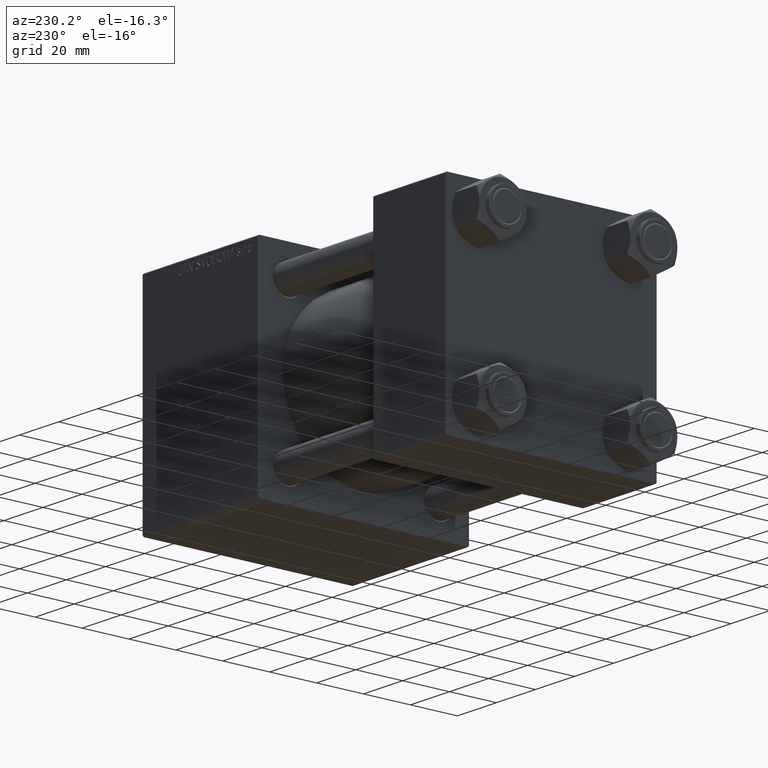
[diagram: clean part render]
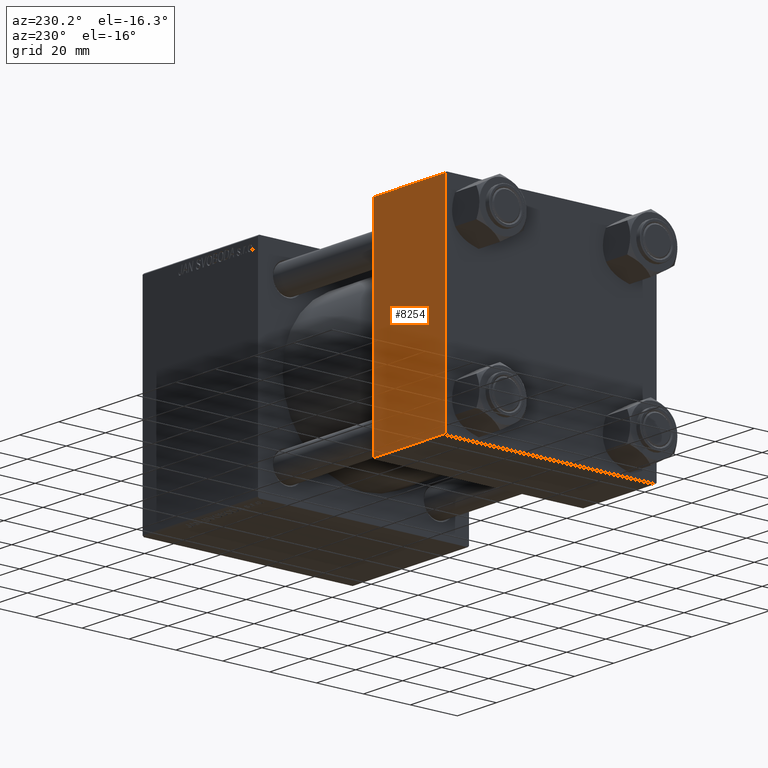
[diagram: same view with one face highlighted and labeled with its STEP entity id]
A machine part, auxiliary view. The second image highlights one B-rep face of the part: STEP entity #8254.
In plain terms, the highlighted planar face has unit normal (0, 1, 0).
Its self-contained STEP definition (entity closure, byte-faithful):
#5567 = CARTESIAN_POINT ( 'NONE',  ( 0.000000000000000000, 44.99999999999998579, 44.50000000000001421 ) ) ;
#6913 = DIRECTION ( 'NONE',  ( 0.000000000000000000, 0.000000000000000000, -1.000000000000000000 ) ) ;
#7414 = ORIENTED_EDGE ( 'NONE', *, *, #33044, .T. ) ;
#8254 = ADVANCED_FACE ( 'NONE', ( #32937 ), #36005, .T. ) ;
#9078 = VERTEX_POINT ( 'NONE', #49251 ) ;
#9746 = EDGE_CURVE ( 'NONE', #47585, #16267, #16538, .T. ) ;
#12712 = CARTESIAN_POINT ( 'NONE',  ( 0.000000000000000000, 44.99999999999998579, 45.00000000000001421 ) ) ;
#12918 = ORIENTED_EDGE ( 'NONE', *, *, #39011, .T. ) ;
#13025 = CARTESIAN_POINT ( 'NONE',  ( 37.00000000000000000, 44.99999999999998579, 44.50000000000001421 ) ) ;
#13546 = CARTESIAN_POINT ( 'NONE',  ( 37.00000000000000000, 44.99999999999998579, -44.49999999999998579 ) ) ;
#13594 = DIRECTION ( 'NONE',  ( 0.000000000000000000, -0.000000000000000000, 1.000000000000000000 ) ) ;
#14293 = LINE ( 'NONE', #13546, #37639 ) ;
#15089 = VECTOR ( 'NONE', #28252, 1000.000000000000000 ) ;
#15446 = AXIS2_PLACEMENT_3D ( 'NONE', #21502, #40069, #13594 ) ;
#16267 = VERTEX_POINT ( 'NONE', #32924 ) ;
#16406 = CARTESIAN_POINT ( 'NONE',  ( 37.00000000000000000, 44.99999999999998579, -44.49999999999995737 ) ) ;
#16510 = EDGE_LOOP ( 'NONE', ( #12918, #26457, #33289, #7414 ) ) ;
#16538 = LINE ( 'NONE', #12712, #15089 ) ;
#21502 = CARTESIAN_POINT ( 'NONE',  ( 37.00000000000000000, 44.99999999999998579, 45.00000000000001421 ) ) ;
#26457 = ORIENTED_EDGE ( 'NONE', *, *, #45440, .T. ) ;
#28252 = DIRECTION ( 'NONE',  ( 0.000000000000000000, 0.000000000000000000, -1.000000000000000000 ) ) ;
#32535 = VECTOR ( 'NONE', #6913, 1000.000000000000000 ) ;
#32924 = CARTESIAN_POINT ( 'NONE',  ( 0.000000000000000000, 44.99999999999998579, -44.49999999999995737 ) ) ;
#32937 = FACE_OUTER_BOUND ( 'NONE', #16510, .T. ) ;
#33044 = EDGE_CURVE ( 'NONE', #47585, #9078, #40263, .T. ) ;
#33289 = ORIENTED_EDGE ( 'NONE', *, *, #9746, .F. ) ;
#36005 = PLANE ( 'NONE',  #15446 ) ;
#36201 = DIRECTION ( 'NONE',  ( 1.000000000000000000, 0.000000000000000000, 0.000000000000000000 ) ) ;
#37639 = VECTOR ( 'NONE', #41285, 1000.000000000000000 ) ;
#39011 = EDGE_CURVE ( 'NONE', #9078, #43641, #45162, .T. ) ;
#40069 = DIRECTION ( 'NONE',  ( -0.000000000000000000, 1.000000000000000000, 0.000000000000000000 ) ) ;
#40263 = LINE ( 'NONE', #13025, #49020 ) ;
#41285 = DIRECTION ( 'NONE',  ( -1.000000000000000000, 0.000000000000000000, 0.000000000000000000 ) ) ;
#43641 = VERTEX_POINT ( 'NONE', #16406 ) ;
#45162 = LINE ( 'NONE', #45897, #32535 ) ;
#45440 = EDGE_CURVE ( 'NONE', #43641, #16267, #14293, .T. ) ;
#45897 = CARTESIAN_POINT ( 'NONE',  ( 37.00000000000000000, 44.99999999999998579, 45.00000000000001421 ) ) ;
#47585 = VERTEX_POINT ( 'NONE', #5567 ) ;
#49020 = VECTOR ( 'NONE', #36201, 1000.000000000000000 ) ;
#49251 = CARTESIAN_POINT ( 'NONE',  ( 37.00000000000000000, 44.99999999999998579, 44.50000000000001421 ) ) ;